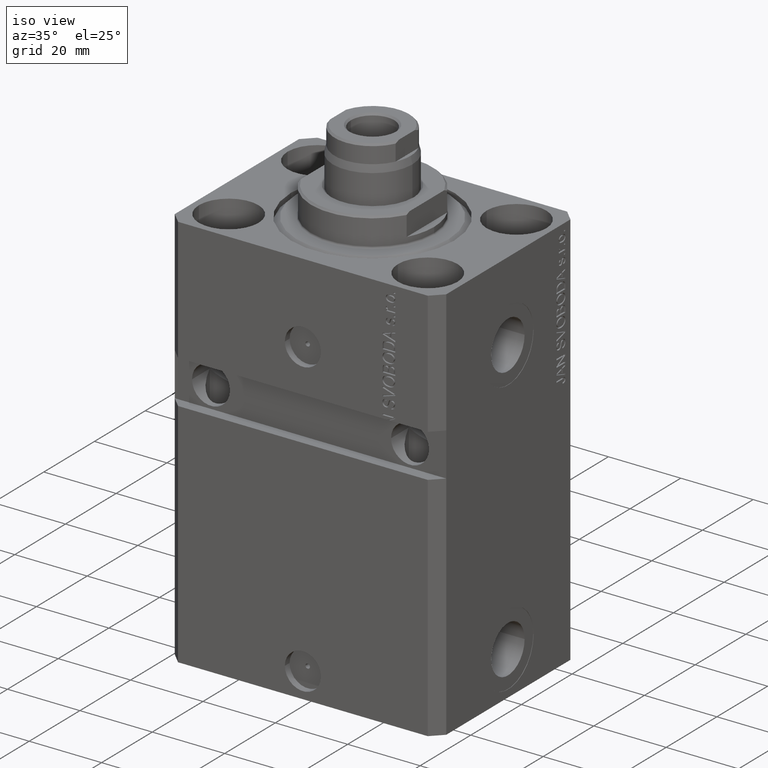
[diagram: clean part render]
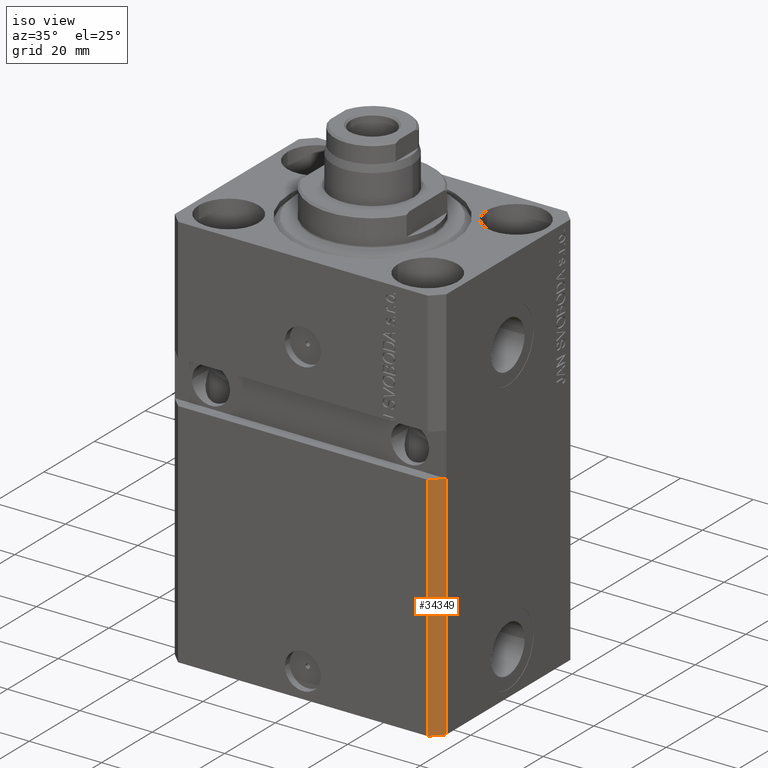
[diagram: same view with one face highlighted and labeled with its STEP entity id]
A machine part, iso view. The second image highlights one B-rep face of the part: STEP entity #34349.
In plain terms, the highlighted planar face has unit normal (0.7071, -0.7071, 0).
Its self-contained STEP definition (entity closure, byte-faithful):
#1316 = DIRECTION ( 'NONE',  ( 0.7071067811865475727, -0.7071067811865475727, 0.000000000000000000 ) ) ;
#2797 = DIRECTION ( 'NONE',  ( 0.000000000000000000, 0.000000000000000000, 1.000000000000000000 ) ) ;
#4776 = EDGE_CURVE ( 'NONE', #21926, #12080, #19289, .T. ) ;
#5440 = CARTESIAN_POINT ( 'NONE',  ( 34.49999999999999289, -27.49999999999999289, -46.00000000000000000 ) ) ;
#5820 = ORIENTED_EDGE ( 'NONE', *, *, #4776, .F. ) ;
#6226 = DIRECTION ( 'NONE',  ( 0.7071067811865474617, 0.7071067811865474617, 0.000000000000000000 ) ) ;
#7037 = VECTOR ( 'NONE', #2797, 1000.000000000000000 ) ;
#8654 = CARTESIAN_POINT ( 'NONE',  ( 37.49999999999999289, -24.50000000000000000, -110.0000000000000000 ) ) ;
#9415 = ORIENTED_EDGE ( 'NONE', *, *, #34935, .T. ) ;
#11980 = FACE_OUTER_BOUND ( 'NONE', #29141, .T. ) ;
#12080 = VERTEX_POINT ( 'NONE', #17112 ) ;
#13683 = LINE ( 'NONE', #17717, #7037 ) ;
#17112 = CARTESIAN_POINT ( 'NONE',  ( 34.49999999999999289, -27.49999999999999289, -46.00000000000000711 ) ) ;
#17717 = CARTESIAN_POINT ( 'NONE',  ( 37.49999999999999289, -24.50000000000000000, -110.0000000000000000 ) ) ;
#18393 = PLANE ( 'NONE',  #19213 ) ;
#19213 = AXIS2_PLACEMENT_3D ( 'NONE', #33288, #1316, #33068 ) ;
#19289 = LINE ( 'NONE', #26634, #46293 ) ;
#21926 = VERTEX_POINT ( 'NONE', #24938 ) ;
#24938 = CARTESIAN_POINT ( 'NONE',  ( 34.49999999999999289, -27.49999999999999645, -110.0000000000000000 ) ) ;
#26634 = CARTESIAN_POINT ( 'NONE',  ( 34.49999999999999289, -27.49999999999999645, -110.0000000000000000 ) ) ;
#27086 = VERTEX_POINT ( 'NONE', #8654 ) ;
#28117 = DIRECTION ( 'NONE',  ( 0.7071067811865474617, 0.7071067811865474617, -6.542051911182397555E-17 ) ) ;
#29141 = EDGE_LOOP ( 'NONE', ( #35664, #5820, #9415, #32966 ) ) ;
#32108 = EDGE_CURVE ( 'NONE', #27086, #40344, #13683, .T. ) ;
#32966 = ORIENTED_EDGE ( 'NONE', *, *, #32108, .T. ) ;
#33068 = DIRECTION ( 'NONE',  ( 0.7071067811865474617, 0.7071067811865474617, 0.000000000000000000 ) ) ;
#33288 = CARTESIAN_POINT ( 'NONE',  ( 34.49999999999999289, -27.49999999999999645, -110.0000000000000000 ) ) ;
#33600 = VECTOR ( 'NONE', #6226, 1000.000000000000114 ) ;
#34349 = ADVANCED_FACE ( 'NONE', ( #11980 ), #18393, .T. ) ;
#34935 = EDGE_CURVE ( 'NONE', #21926, #27086, #46441, .T. ) ;
#35110 = CARTESIAN_POINT ( 'NONE',  ( 34.49999999999999289, -27.49999999999999645, -110.0000000000000000 ) ) ;
#35664 = ORIENTED_EDGE ( 'NONE', *, *, #40799, .F. ) ;
#39624 = CARTESIAN_POINT ( 'NONE',  ( 37.49999999999999289, -24.49999999999999289, -46.00000000000000711 ) ) ;
#40344 = VERTEX_POINT ( 'NONE', #39624 ) ;
#40799 = EDGE_CURVE ( 'NONE', #12080, #40344, #44972, .T. ) ;
#41335 = VECTOR ( 'NONE', #28117, 1000.000000000000114 ) ;
#44120 = DIRECTION ( 'NONE',  ( 0.000000000000000000, 0.000000000000000000, 1.000000000000000000 ) ) ;
#44972 = LINE ( 'NONE', #5440, #41335 ) ;
#46293 = VECTOR ( 'NONE', #44120, 1000.000000000000000 ) ;
#46441 = LINE ( 'NONE', #35110, #33600 ) ;